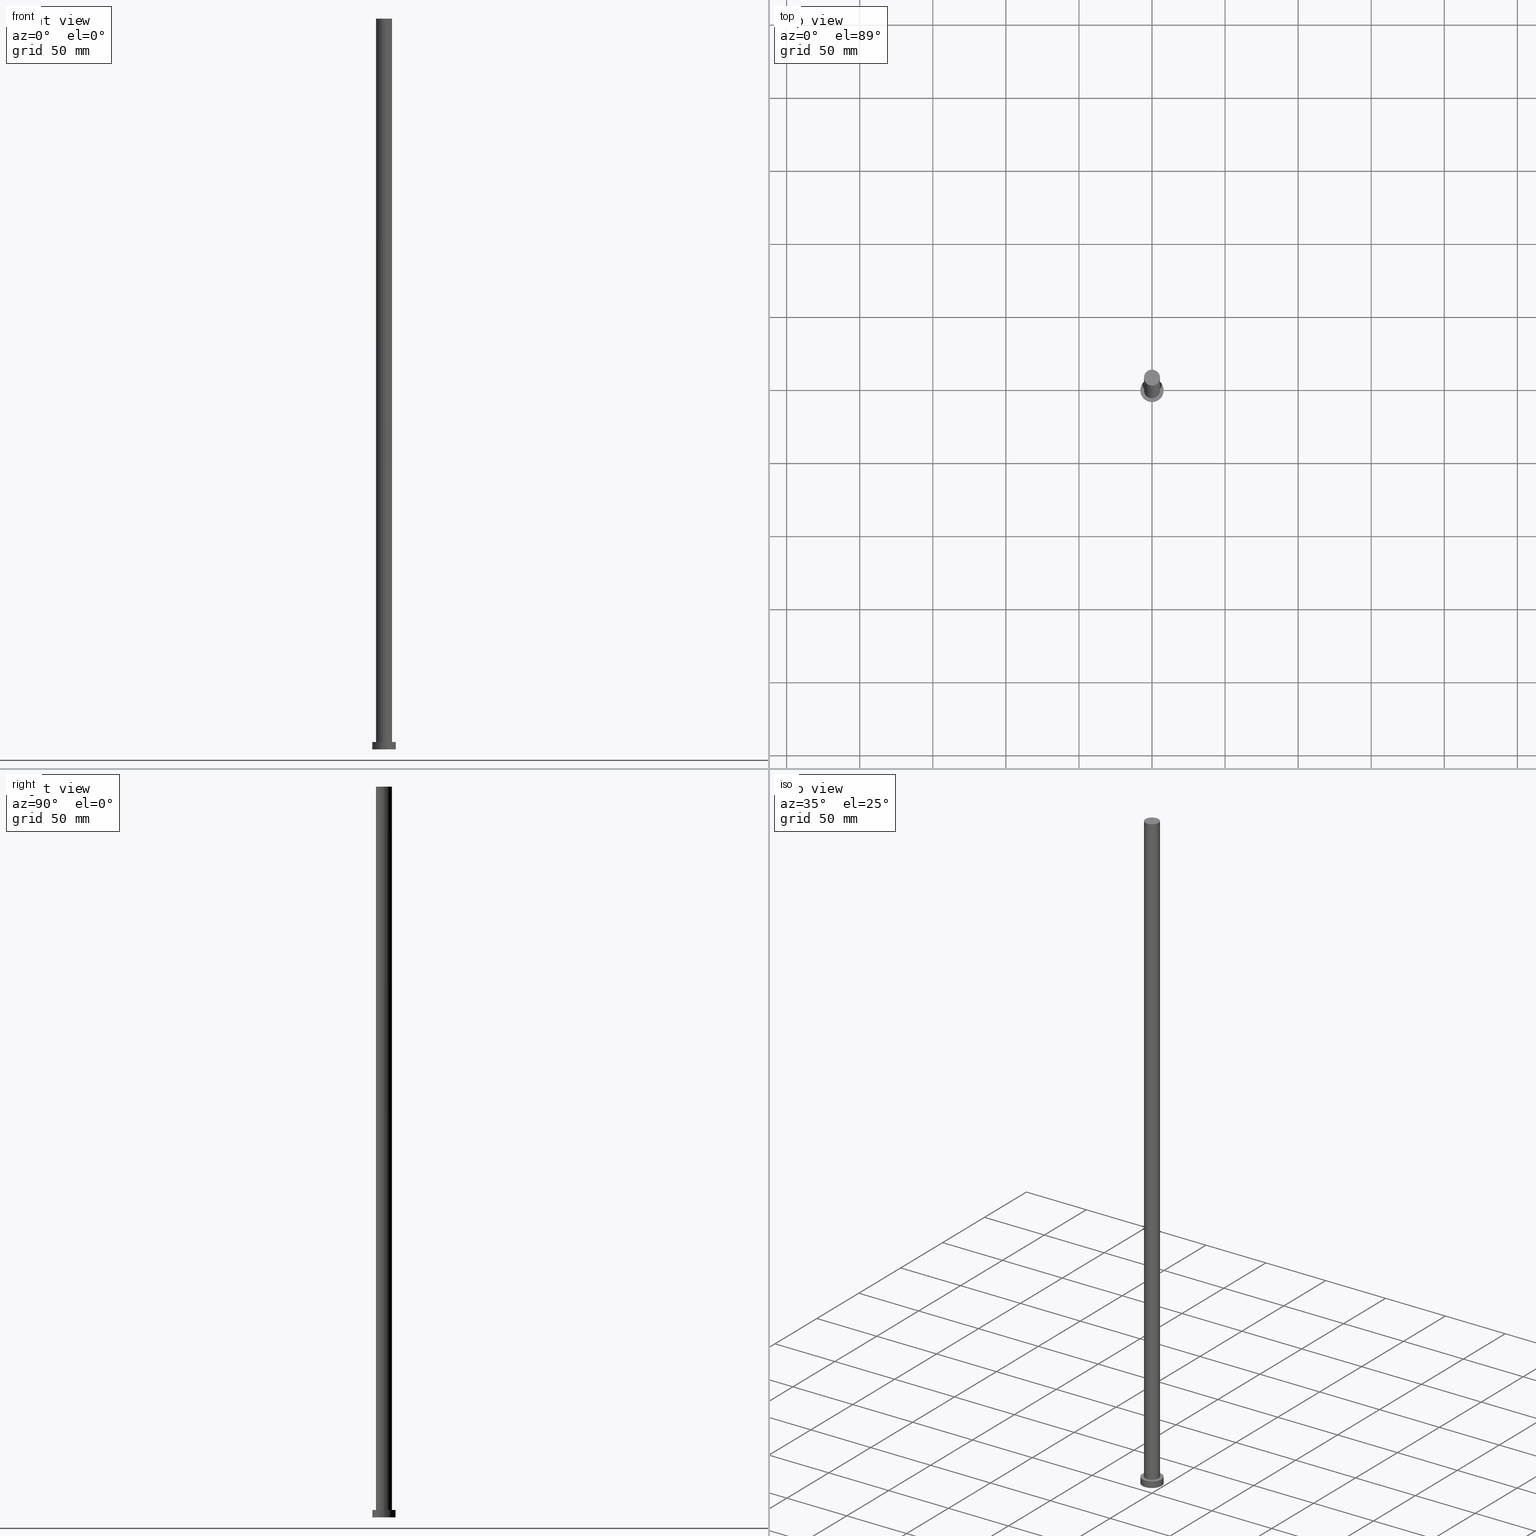
[diagram: canonical four-view strip — front | top / right | iso, engineering-drawing reading convention]
A machine part, canonical four-view strip (front | top / right | iso — engineering-drawing reading convention). The complete STEP part file that produces these views, byte-faithful:
ISO-10303-21;
HEADER;
FILE_DESCRIPTION (( 'STEP AP203' ),
    '1' );
FILE_NAME ('d6bf.STEP',
    '2023-02-12T10:50:29',
    ( '' ),
    ( '' ),
    'SwSTEP 2.0',
    'SolidWorks 2019',
    '' );
FILE_SCHEMA (( 'CONFIG_CONTROL_DESIGN' ));
ENDSEC;

DATA;
#1 = APPLICATION_CONTEXT ( 'configuration controlled 3d designs of mechanical parts and assemblies' ) ;
#2 = DIRECTION ( 'NONE',  ( 1.000000000000000000, 0.000000000000000000, 0.000000000000000000 ) ) ;
#3 = APPROVAL_STATUS ( 'not_yet_approved' ) ;
#4 = EDGE_CURVE ( 'NONE', #172, #88, #230, .T. ) ;
#5 = CALENDAR_DATE ( 2023, 12, 2 ) ;
#6 = DIRECTION ( 'NONE',  ( 1.000000000000000000, 0.000000000000000000, 0.000000000000000000 ) ) ;
#7 = FACE_OUTER_BOUND ( 'NONE', #19, .T. ) ;
#8 = DIRECTION ( 'NONE',  ( 0.000000000000000000, 0.000000000000000000, 1.000000000000000000 ) ) ;
#9 = PERSON_AND_ORGANIZATION_ROLE ( 'creator' ) ;
#10 = DIRECTION ( 'NONE',  ( 0.000000000000000000, 0.000000000000000000, 1.000000000000000000 ) ) ;
#11 = EDGE_CURVE ( 'NONE', #137, #214, #167, .T. ) ;
#12 = CARTESIAN_POINT ( 'NONE',  ( 5.500000000000000000, 6.735557395310442023E-16, 500.0000000000000000 ) ) ;
#13 = ORIENTED_EDGE ( 'NONE', *, *, #40, .F. ) ;
#14 = CC_DESIGN_APPROVAL ( #164, ( #70 ) ) ;
#15 = ORIENTED_EDGE ( 'NONE', *, *, #40, .T. ) ;
#16 = EDGE_LOOP ( 'NONE', ( #228, #240 ) ) ;
#17 = AXIS2_PLACEMENT_3D ( 'NONE', #54, #114, #134 ) ;
#18 = CYLINDRICAL_SURFACE ( 'NONE', #59, 8.000000000000000000 ) ;
#19 = EDGE_LOOP ( 'NONE', ( #156, #136 ) ) ;
#20 = EDGE_CURVE ( 'NONE', #88, #172, #220, .T. ) ;
#21 = CARTESIAN_POINT ( 'NONE',  ( 0.000000000000000000, 0.000000000000000000, 5.000000000000000000 ) ) ;
#22 = PERSON_AND_ORGANIZATION ( #24, #25 ) ;
#23 = EDGE_CURVE ( 'NONE', #88, #194, #193, .T. ) ;
#24 = PERSON ( 'NEUR�EN�', 'NEUR�EN�', 'NEUR�EN�', ('NEUR�EN�'), ('NEUR�EN�'), ('NEUR�EN�') ) ;
#25 = ORGANIZATION ( 'NEUR�EN�', 'NEUR�EN�', '' ) ;
#26 = PERSON_AND_ORGANIZATION_ROLE ( 'creator' ) ;
#27 = APPROVAL_ROLE ( '' ) ;
#28 = AXIS2_PLACEMENT_3D ( 'NONE', #199, #90, #2 ) ;
#29 =( LENGTH_UNIT ( ) NAMED_UNIT ( * ) SI_UNIT ( .MILLI., .METRE. ) );
#30 = CARTESIAN_POINT ( 'NONE',  ( 0.000000000000000000, 0.000000000000000000, 500.0000000000000000 ) ) ;
#31 = CALENDAR_DATE ( 2023, 12, 2 ) ;
#32 = APPLICATION_PROTOCOL_DEFINITION ( 'international standard', 'config_control_design', 1994, #39 ) ;
#33 = DIRECTION ( 'NONE',  ( 1.000000000000000000, 0.000000000000000000, -0.000000000000000000 ) ) ;
#34 = CARTESIAN_POINT ( 'NONE',  ( 0.000000000000000000, 0.000000000000000000, 500.0000000000000000 ) ) ;
#35 = CLOSED_SHELL ( 'NONE', ( #64, #140, #143, #216, #246, #95, #100 ) ) ;
#36 = CARTESIAN_POINT ( 'NONE',  ( 5.500000000000000000, 6.735557395310442023E-16, 5.000000000000000000 ) ) ;
#37 = MANIFOLD_SOLID_BREP ( 'P�idat vysunut�m3', #35 ) ;
#38 = DIRECTION ( 'NONE',  ( -0.000000000000000000, -0.000000000000000000, -1.000000000000000000 ) ) ;
#39 = APPLICATION_CONTEXT ( 'configuration controlled 3d designs of mechanical parts and assemblies' ) ;
#40 = EDGE_CURVE ( 'NONE', #198, #214, #197, .T. ) ;
#41 = APPLICATION_PROTOCOL_DEFINITION ( 'international standard', 'config_control_design', 1994, #1 ) ;
#42 = CC_DESIGN_APPROVAL ( #203, ( #109 ) ) ;
#43 = CARTESIAN_POINT ( 'NONE',  ( 0.000000000000000000, 0.000000000000000000, 500.0000000000000000 ) ) ;
#44 = ORIENTED_EDGE ( 'NONE', *, *, #147, .T. ) ;
#45 = LINE ( 'NONE', #81, #113 ) ;
#46 = ORIENTED_EDGE ( 'NONE', *, *, #47, .T. ) ;
#47 = EDGE_CURVE ( 'NONE', #198, #131, #195, .T. ) ;
#48 = PERSON_AND_ORGANIZATION ( #24, #25 ) ;
#49 = FACE_OUTER_BOUND ( 'NONE', #16, .T. ) ;
#50 = EDGE_LOOP ( 'NONE', ( #200, #15, #44, #177 ) ) ;
#51 = CARTESIAN_POINT ( 'NONE',  ( -8.000000000000000000, 0.000000000000000000, 0.000000000000000000 ) ) ;
#52 = DIRECTION ( 'NONE',  ( -0.000000000000000000, -0.000000000000000000, -1.000000000000000000 ) ) ;
#53 = EDGE_CURVE ( 'NONE', #219, #194, #241, .T. ) ;
#54 = CARTESIAN_POINT ( 'NONE',  ( 0.000000000000000000, 0.000000000000000000, 5.000000000000000000 ) ) ;
#55 = AXIS2_PLACEMENT_3D ( 'NONE', #169, #8, #170 ) ;
#56 = AXIS2_PLACEMENT_3D ( 'NONE', #61, #144, #89 ) ;
#57 = LOCAL_TIME ( 11, 50, 29.00000000000000000, #101 ) ;
#58 = CALENDAR_DATE ( 2023, 12, 2 ) ;
#59 = AXIS2_PLACEMENT_3D ( 'NONE', #72, #38, #87 ) ;
#60 = CC_DESIGN_APPROVAL ( #110, ( #243 ) ) ;
#61 = CARTESIAN_POINT ( 'NONE',  ( 0.000000000000000000, 0.000000000000000000, 0.000000000000000000 ) ) ;
#62 = DIRECTION ( 'NONE',  ( 1.000000000000000000, 0.000000000000000000, -0.000000000000000000 ) ) ;
#63 = DIRECTION ( 'NONE',  ( -0.000000000000000000, -0.000000000000000000, -1.000000000000000000 ) ) ;
#64 = ADVANCED_FACE ( 'NONE', ( #227 ), #248, .T. ) ;
#65 = PERSON_AND_ORGANIZATION ( #24, #25 ) ;
#66 = DIRECTION ( 'NONE',  ( -0.000000000000000000, -0.000000000000000000, -1.000000000000000000 ) ) ;
#67 = EDGE_LOOP ( 'NONE', ( #174, #225, #108, #190 ) ) ;
#68 = DIRECTION ( 'NONE',  ( -1.000000000000000000, 0.000000000000000000, 0.000000000000000000 ) ) ;
#69 = ORIENTED_EDGE ( 'NONE', *, *, #218, .T. ) ;
#70 = PRODUCT_DEFINITION ( 'NEZN�M�', '', #243, #157 ) ;
#71 = DIRECTION ( 'NONE',  ( 1.000000000000000000, 0.000000000000000000, 0.000000000000000000 ) ) ;
#72 = CARTESIAN_POINT ( 'NONE',  ( 0.000000000000000000, 0.000000000000000000, 5.000000000000000000 ) ) ;
#73 = LOCAL_TIME ( 11, 50, 29.00000000000000000, #184 ) ;
#74 = DATE_AND_TIME ( #5, #73 ) ;
#75 = ORIENTED_EDGE ( 'NONE', *, *, #23, .T. ) ;
#76 = EDGE_LOOP ( 'NONE', ( #69, #46 ) ) ;
#77 = APPROVAL_ROLE ( '' ) ;
#78 = EDGE_CURVE ( 'NONE', #172, #219, #45, .T. ) ;
#79 = CIRCLE ( 'NONE', #17, 5.500000000000000000 ) ;
#80 = DIRECTION ( 'NONE',  ( -0.000000000000000000, -0.000000000000000000, -1.000000000000000000 ) ) ;
#81 = CARTESIAN_POINT ( 'NONE',  ( -5.500000000000000000, 0.000000000000000000, 500.0000000000000000 ) ) ;
#82 = PERSON_AND_ORGANIZATION_ROLE ( 'design_supplier' ) ;
#83 = DIRECTION ( 'NONE',  ( 0.000000000000000000, 0.000000000000000000, 1.000000000000000000 ) ) ;
#84 = AXIS2_PLACEMENT_3D ( 'NONE', #215, #106, #196 ) ;
#85 = APPROVAL_PERSON_ORGANIZATION ( #150, #203, #118 ) ;
#86 = CC_DESIGN_PERSON_AND_ORGANIZATION_ASSIGNMENT ( #65, #82, ( #243 ) ) ;
#87 = DIRECTION ( 'NONE',  ( -1.000000000000000000, 0.000000000000000000, 0.000000000000000000 ) ) ;
#88 = VERTEX_POINT ( 'NONE', #163 ) ;
#89 = DIRECTION ( 'NONE',  ( 1.000000000000000000, 0.000000000000000000, 0.000000000000000000 ) ) ;
#90 = DIRECTION ( 'NONE',  ( 0.000000000000000000, 0.000000000000000000, 1.000000000000000000 ) ) ;
#91 = AXIS2_PLACEMENT_3D ( 'NONE', #30, #10, #71 ) ;
#92 = LOCAL_TIME ( 11, 50, 29.00000000000000000, #123 ) ;
#93 = FACE_BOUND ( 'NONE', #171, .T. ) ;
#94 = ADVANCED_BREP_SHAPE_REPRESENTATION ( 'd6bf', ( #37, #56 ), #138 ) ;
#95 = ADVANCED_FACE ( 'NONE', ( #154 ), #252, .T. ) ;
#96 = AXIS2_PLACEMENT_3D ( 'NONE', #43, #122, #250 ) ;
#97 = CC_DESIGN_SECURITY_CLASSIFICATION ( #109, ( #243 ) ) ;
#98 = PERSON_AND_ORGANIZATION_ROLE ( 'classification_officer' ) ;
#99 = CALENDAR_DATE ( 2023, 12, 2 ) ;
#100 = ADVANCED_FACE ( 'NONE', ( #49 ), #151, .T. ) ;
#101 = COORDINATED_UNIVERSAL_TIME_OFFSET ( 1, 0, .AHEAD. ) ;
#102 = CARTESIAN_POINT ( 'NONE',  ( 8.000000000000000000, 9.797174393178825657E-16, 5.000000000000000000 ) ) ;
#103 = ORIENTED_EDGE ( 'NONE', *, *, #218, .F. ) ;
#104 = DATE_AND_TIME ( #31, #188 ) ;
#105 = DIRECTION ( 'NONE',  ( 0.000000000000000000, 0.000000000000000000, 1.000000000000000000 ) ) ;
#106 = DIRECTION ( 'NONE',  ( 0.000000000000000000, 0.000000000000000000, 1.000000000000000000 ) ) ;
#107 = DIRECTION ( 'NONE',  ( 0.000000000000000000, 0.000000000000000000, 1.000000000000000000 ) ) ;
#108 = ORIENTED_EDGE ( 'NONE', *, *, #78, .T. ) ;
#109 = SECURITY_CLASSIFICATION ( '', '', #251 ) ;
#110 = APPROVAL ( #210, 'NEUR�EN�' ) ;
#111 = CARTESIAN_POINT ( 'NONE',  ( 8.000000000000000000, 9.797174393178825657E-16, 5.000000000000000000 ) ) ;
#112 = VECTOR ( 'NONE', #232, 1000.000000000000000 ) ;
#113 = VECTOR ( 'NONE', #66, 1000.000000000000000 ) ;
#114 = DIRECTION ( 'NONE',  ( 0.000000000000000000, 0.000000000000000000, 1.000000000000000000 ) ) ;
#115 = PERSON_AND_ORGANIZATION ( #24, #25 ) ;
#116 = AXIS2_PLACEMENT_3D ( 'NONE', #187, #105, #6 ) ;
#117 = PRODUCT ( 'd6bf', 'd6bf', '', ( #141 ) ) ;
#118 = APPROVAL_ROLE ( '' ) ;
#119 = LOCAL_TIME ( 11, 50, 29.00000000000000000, #159 ) ;
#120 = ORIENTED_EDGE ( 'NONE', *, *, #176, .T. ) ;
#121 =( NAMED_UNIT ( * ) SI_UNIT ( $, .STERADIAN. ) SOLID_ANGLE_UNIT ( ) );
#122 = DIRECTION ( 'NONE',  ( -0.000000000000000000, -0.000000000000000000, -1.000000000000000000 ) ) ;
#123 = COORDINATED_UNIVERSAL_TIME_OFFSET ( 1, 0, .AHEAD. ) ;
#124 = CARTESIAN_POINT ( 'NONE',  ( 0.000000000000000000, 0.000000000000000000, 5.000000000000000000 ) ) ;
#125 = DIRECTION ( 'NONE',  ( 0.000000000000000000, 0.000000000000000000, 1.000000000000000000 ) ) ;
#126 = CARTESIAN_POINT ( 'NONE',  ( -5.500000000000000000, 0.000000000000000000, 5.000000000000000000 ) ) ;
#127 = UNCERTAINTY_MEASURE_WITH_UNIT (LENGTH_MEASURE( 1.000000000000000082E-05 ), #29, 'distance_accuracy_value', 'NONE');
#128 = COORDINATED_UNIVERSAL_TIME_OFFSET ( 1, 0, .AHEAD. ) ;
#129 =( NAMED_UNIT ( * ) PLANE_ANGLE_UNIT ( ) SI_UNIT ( $, .RADIAN. ) );
#130 = DIRECTION ( 'NONE',  ( 0.000000000000000000, 0.000000000000000000, 1.000000000000000000 ) ) ;
#131 = VERTEX_POINT ( 'NONE', #236 ) ;
#132 = APPROVAL_PERSON_ORGANIZATION ( #22, #164, #77 ) ;
#133 = CC_DESIGN_PERSON_AND_ORGANIZATION_ASSIGNMENT ( #48, #9, ( #243 ) ) ;
#134 = DIRECTION ( 'NONE',  ( 1.000000000000000000, 0.000000000000000000, 0.000000000000000000 ) ) ;
#135 = APPROVAL_DATE_TIME ( #74, #203 ) ;
#136 = ORIENTED_EDGE ( 'NONE', *, *, #147, .F. ) ;
#137 = VERTEX_POINT ( 'NONE', #51 ) ;
#138 =( GEOMETRIC_REPRESENTATION_CONTEXT ( 3 ) GLOBAL_UNCERTAINTY_ASSIGNED_CONTEXT ( ( #127 ) ) GLOBAL_UNIT_ASSIGNED_CONTEXT ( ( #29, #129, #121 ) ) REPRESENTATION_CONTEXT ( 'NONE', 'WORKASPACE' ) );
#139 = FACE_OUTER_BOUND ( 'NONE', #223, .T. ) ;
#140 = ADVANCED_FACE ( 'NONE', ( #239 ), #18, .T. ) ;
#141 = MECHANICAL_CONTEXT ( 'NONE', #39, 'mechanical' ) ;
#142 = DATE_AND_TIME ( #58, #119 ) ;
#143 = ADVANCED_FACE ( 'NONE', ( #139 ), #202, .T. ) ;
#144 = DIRECTION ( 'NONE',  ( 0.000000000000000000, 0.000000000000000000, 1.000000000000000000 ) ) ;
#145 = AXIS2_PLACEMENT_3D ( 'NONE', #253, #130, #33 ) ;
#146 = ORIENTED_EDGE ( 'NONE', *, *, #78, .F. ) ;
#147 = EDGE_CURVE ( 'NONE', #214, #137, #247, .T. ) ;
#148 = DIRECTION ( 'NONE',  ( 1.000000000000000000, 0.000000000000000000, 0.000000000000000000 ) ) ;
#149 = ORIENTED_EDGE ( 'NONE', *, *, #176, .F. ) ;
#150 = PERSON_AND_ORGANIZATION ( #24, #25 ) ;
#151 = PLANE ( 'NONE',  #145 ) ;
#152 = ORIENTED_EDGE ( 'NONE', *, *, #11, .T. ) ;
#153 = SHAPE_DEFINITION_REPRESENTATION ( #185, #94 ) ;
#154 = FACE_OUTER_BOUND ( 'NONE', #67, .T. ) ;
#155 = CC_DESIGN_PERSON_AND_ORGANIZATION_ASSIGNMENT ( #186, #98, ( #109 ) ) ;
#156 = ORIENTED_EDGE ( 'NONE', *, *, #11, .F. ) ;
#157 = DESIGN_CONTEXT ( 'detailed design', #1, 'design' ) ;
#158 = VECTOR ( 'NONE', #224, 1000.000000000000000 ) ;
#159 = COORDINATED_UNIVERSAL_TIME_OFFSET ( 1, 0, .AHEAD. ) ;
#160 = AXIS2_PLACEMENT_3D ( 'NONE', #254, #125, #148 ) ;
#161 = PLANE ( 'NONE',  #178 ) ;
#162 = APPROVAL_PERSON_ORGANIZATION ( #208, #110, #27 ) ;
#163 = CARTESIAN_POINT ( 'NONE',  ( 5.500000000000000000, 6.735557395310442023E-16, 500.0000000000000000 ) ) ;
#164 = APPROVAL ( #3, 'NEUR�EN�' ) ;
#165 = DATE_TIME_ROLE ( 'creation_date' ) ;
#166 = DIRECTION ( 'NONE',  ( 1.000000000000000000, 0.000000000000000000, 0.000000000000000000 ) ) ;
#167 = CIRCLE ( 'NONE', #55, 8.000000000000000000 ) ;
#168 = DATE_TIME_ROLE ( 'classification_date' ) ;
#169 = CARTESIAN_POINT ( 'NONE',  ( 0.000000000000000000, 0.000000000000000000, 0.000000000000000000 ) ) ;
#170 = DIRECTION ( 'NONE',  ( 1.000000000000000000, 0.000000000000000000, 0.000000000000000000 ) ) ;
#171 = EDGE_LOOP ( 'NONE', ( #255, #149 ) ) ;
#172 = VERTEX_POINT ( 'NONE', #237 ) ;
#173 = CIRCLE ( 'NONE', #116, 8.000000000000000000 ) ;
#174 = ORIENTED_EDGE ( 'NONE', *, *, #23, .F. ) ;
#175 = DIRECTION ( 'NONE',  ( -1.000000000000000000, 0.000000000000000000, 0.000000000000000000 ) ) ;
#176 = EDGE_CURVE ( 'NONE', #194, #219, #79, .T. ) ;
#177 = ORIENTED_EDGE ( 'NONE', *, *, #235, .F. ) ;
#178 = AXIS2_PLACEMENT_3D ( 'NONE', #124, #209, #62 ) ;
#179 = AXIS2_PLACEMENT_3D ( 'NONE', #233, #107, #166 ) ;
#180 = CC_DESIGN_PERSON_AND_ORGANIZATION_ASSIGNMENT ( #115, #204, ( #117 ) ) ;
#181 = ORIENTED_EDGE ( 'NONE', *, *, #20, .F. ) ;
#182 = AXIS2_PLACEMENT_3D ( 'NONE', #192, #63, #68 ) ;
#183 = CC_DESIGN_DATE_AND_TIME_ASSIGNMENT ( #231, #165, ( #70 ) ) ;
#184 = COORDINATED_UNIVERSAL_TIME_OFFSET ( 1, 0, .AHEAD. ) ;
#185 = PRODUCT_DEFINITION_SHAPE ( 'NONE', 'NONE',  #70 ) ;
#186 = PERSON_AND_ORGANIZATION ( #24, #25 ) ;
#187 = CARTESIAN_POINT ( 'NONE',  ( 0.000000000000000000, 0.000000000000000000, 5.000000000000000000 ) ) ;
#188 = LOCAL_TIME ( 11, 50, 29.00000000000000000, #128 ) ;
#189 = LINE ( 'NONE', #211, #112 ) ;
#190 = ORIENTED_EDGE ( 'NONE', *, *, #53, .T. ) ;
#191 = APPROVAL_DATE_TIME ( #245, #110 ) ;
#192 = CARTESIAN_POINT ( 'NONE',  ( 0.000000000000000000, 0.000000000000000000, 500.0000000000000000 ) ) ;
#193 = LINE ( 'NONE', #12, #158 ) ;
#194 = VERTEX_POINT ( 'NONE', #36 ) ;
#195 = CIRCLE ( 'NONE', #160, 8.000000000000000000 ) ;
#196 = DIRECTION ( 'NONE',  ( 1.000000000000000000, 0.000000000000000000, -0.000000000000000000 ) ) ;
#197 = LINE ( 'NONE', #102, #205 ) ;
#198 = VERTEX_POINT ( 'NONE', #111 ) ;
#199 = CARTESIAN_POINT ( 'NONE',  ( 0.000000000000000000, 0.000000000000000000, 0.000000000000000000 ) ) ;
#200 = ORIENTED_EDGE ( 'NONE', *, *, #47, .F. ) ;
#201 = CARTESIAN_POINT ( 'NONE',  ( 8.000000000000000000, 9.797174393178825657E-16, 0.000000000000000000 ) ) ;
#202 = CYLINDRICAL_SURFACE ( 'NONE', #229, 8.000000000000000000 ) ;
#203 = APPROVAL ( #234, 'NEUR�EN�' ) ;
#204 = PERSON_AND_ORGANIZATION_ROLE ( 'design_owner' ) ;
#205 = VECTOR ( 'NONE', #80, 1000.000000000000000 ) ;
#206 = PLANE ( 'NONE',  #84 ) ;
#207 = ORIENTED_EDGE ( 'NONE', *, *, #235, .T. ) ;
#208 = PERSON_AND_ORGANIZATION ( #24, #25 ) ;
#209 = DIRECTION ( 'NONE',  ( 0.000000000000000000, 0.000000000000000000, 1.000000000000000000 ) ) ;
#210 = APPROVAL_STATUS ( 'not_yet_approved' ) ;
#211 = CARTESIAN_POINT ( 'NONE',  ( -8.000000000000000000, 0.000000000000000000, 5.000000000000000000 ) ) ;
#212 = CALENDAR_DATE ( 2023, 12, 2 ) ;
#213 = DIRECTION ( 'NONE',  ( 1.000000000000000000, 0.000000000000000000, 0.000000000000000000 ) ) ;
#214 = VERTEX_POINT ( 'NONE', #201 ) ;
#215 = CARTESIAN_POINT ( 'NONE',  ( 0.000000000000000000, 0.000000000000000000, 0.000000000000000000 ) ) ;
#216 = ADVANCED_FACE ( 'NONE', ( #93, #242 ), #161, .T. ) ;
#217 = EDGE_LOOP ( 'NONE', ( #181, #75, #120, #146 ) ) ;
#218 = EDGE_CURVE ( 'NONE', #131, #198, #173, .T. ) ;
#219 = VERTEX_POINT ( 'NONE', #126 ) ;
#220 = CIRCLE ( 'NONE', #222, 5.500000000000000000 ) ;
#221 = CC_DESIGN_DATE_AND_TIME_ASSIGNMENT ( #104, #168, ( #109 ) ) ;
#222 = AXIS2_PLACEMENT_3D ( 'NONE', #34, #83, #213 ) ;
#223 = EDGE_LOOP ( 'NONE', ( #13, #103, #207, #152 ) ) ;
#224 = DIRECTION ( 'NONE',  ( -0.000000000000000000, -0.000000000000000000, -1.000000000000000000 ) ) ;
#225 = ORIENTED_EDGE ( 'NONE', *, *, #4, .F. ) ;
#226 = PERSON_AND_ORGANIZATION ( #24, #25 ) ;
#227 = FACE_OUTER_BOUND ( 'NONE', #217, .T. ) ;
#228 = ORIENTED_EDGE ( 'NONE', *, *, #4, .T. ) ;
#229 = AXIS2_PLACEMENT_3D ( 'NONE', #21, #52, #175 ) ;
#230 = CIRCLE ( 'NONE', #91, 5.500000000000000000 ) ;
#231 = DATE_AND_TIME ( #212, #92 ) ;
#232 = DIRECTION ( 'NONE',  ( -0.000000000000000000, -0.000000000000000000, -1.000000000000000000 ) ) ;
#233 = CARTESIAN_POINT ( 'NONE',  ( 0.000000000000000000, 0.000000000000000000, 5.000000000000000000 ) ) ;
#234 = APPROVAL_STATUS ( 'not_yet_approved' ) ;
#235 = EDGE_CURVE ( 'NONE', #131, #137, #189, .T. ) ;
#236 = CARTESIAN_POINT ( 'NONE',  ( -8.000000000000000000, 0.000000000000000000, 5.000000000000000000 ) ) ;
#237 = CARTESIAN_POINT ( 'NONE',  ( -5.500000000000000000, 0.000000000000000000, 500.0000000000000000 ) ) ;
#238 = CC_DESIGN_PERSON_AND_ORGANIZATION_ASSIGNMENT ( #226, #26, ( #70 ) ) ;
#239 = FACE_OUTER_BOUND ( 'NONE', #50, .T. ) ;
#240 = ORIENTED_EDGE ( 'NONE', *, *, #20, .T. ) ;
#241 = CIRCLE ( 'NONE', #179, 5.500000000000000000 ) ;
#242 = FACE_OUTER_BOUND ( 'NONE', #76, .T. ) ;
#243 = PRODUCT_DEFINITION_FORMATION_WITH_SPECIFIED_SOURCE ( 'LIBOVOLN�', '', #117, .NOT_KNOWN. ) ;
#244 = PRODUCT_RELATED_PRODUCT_CATEGORY ( 'detail', '', ( #117 ) ) ;
#245 = DATE_AND_TIME ( #99, #57 ) ;
#246 = ADVANCED_FACE ( 'NONE', ( #7 ), #206, .F. ) ;
#247 = CIRCLE ( 'NONE', #28, 8.000000000000000000 ) ;
#248 = CYLINDRICAL_SURFACE ( 'NONE', #182, 5.500000000000000000 ) ;
#249 = APPROVAL_DATE_TIME ( #142, #164 ) ;
#250 = DIRECTION ( 'NONE',  ( -1.000000000000000000, 0.000000000000000000, 0.000000000000000000 ) ) ;
#251 = SECURITY_CLASSIFICATION_LEVEL ( 'unclassified' ) ;
#252 = CYLINDRICAL_SURFACE ( 'NONE', #96, 5.500000000000000000 ) ;
#253 = CARTESIAN_POINT ( 'NONE',  ( 0.000000000000000000, 0.000000000000000000, 500.0000000000000000 ) ) ;
#254 = CARTESIAN_POINT ( 'NONE',  ( 0.000000000000000000, 0.000000000000000000, 5.000000000000000000 ) ) ;
#255 = ORIENTED_EDGE ( 'NONE', *, *, #53, .F. ) ;
ENDSEC;
END-ISO-10303-21;
